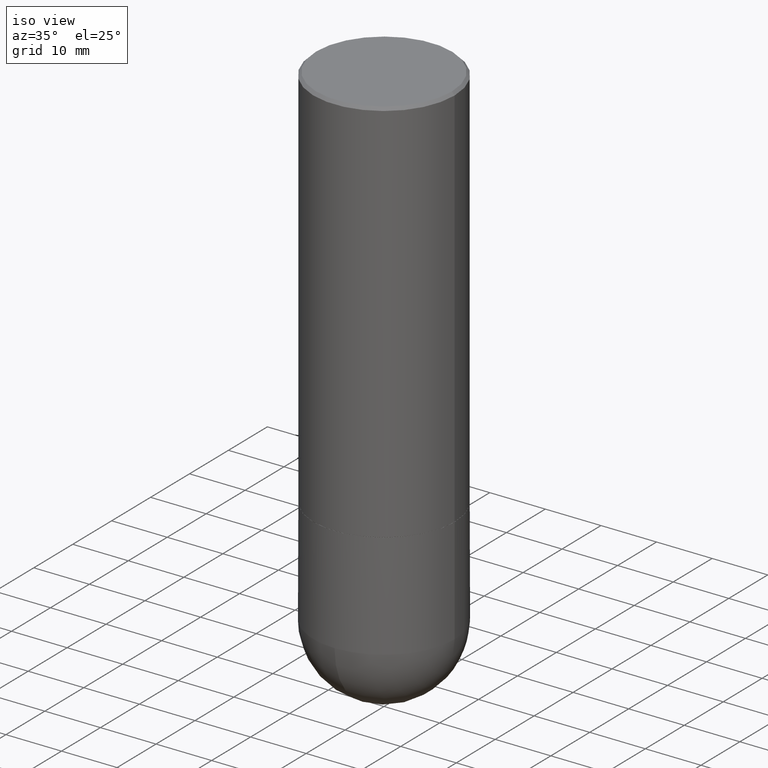
[diagram: clean part render]
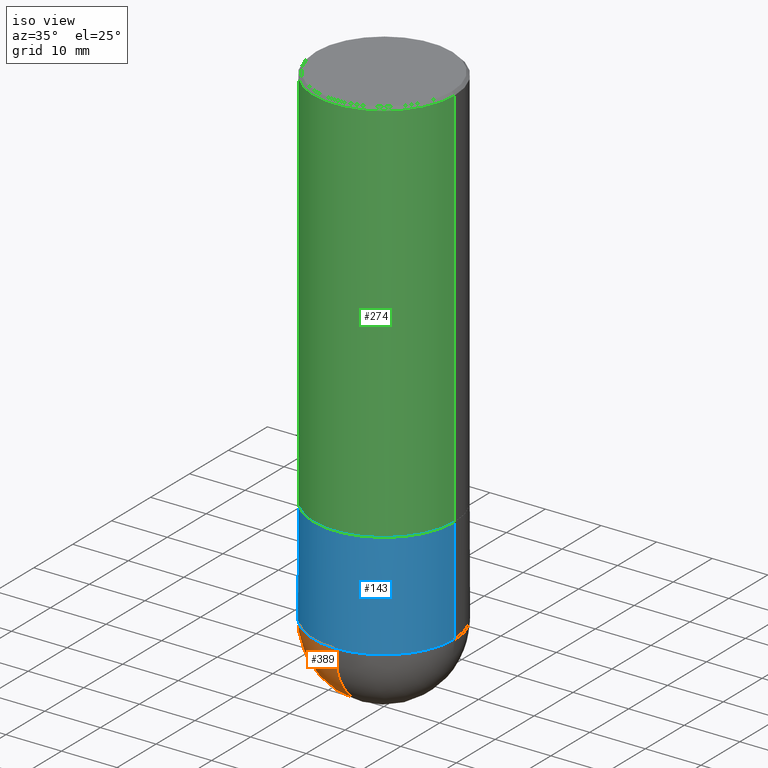
[diagram: same view with three faces highlighted in distinct colors, each labeled with its STEP entity id]
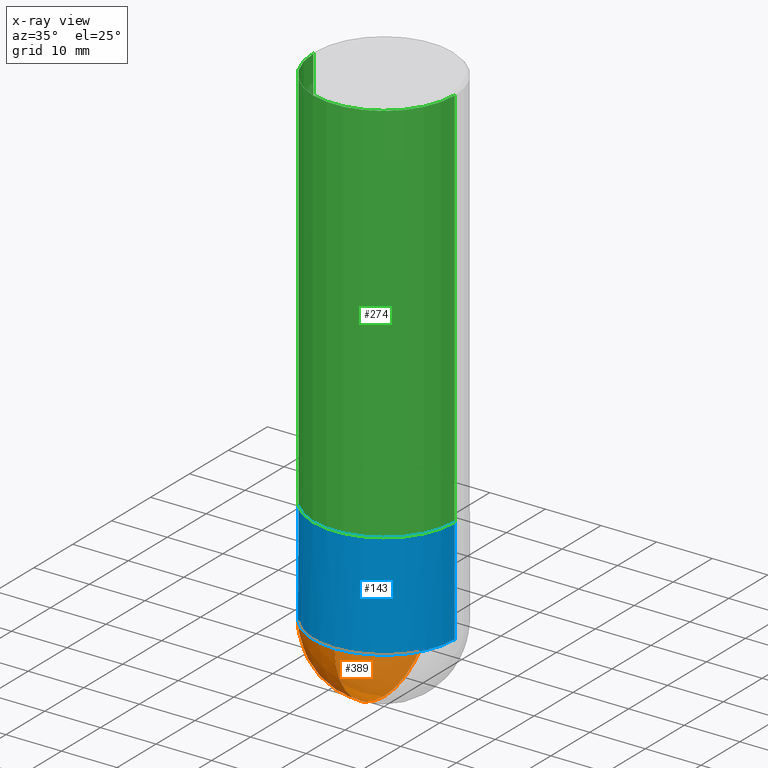
[diagram: x-ray of the same camera — body ghosted, the three highlighted faces saturated]
A machine part, iso view with three faces highlighted in distinct colors.
The next image is the same camera in x-ray (body ghosted, the three faces saturated) — at least one of them is partly hidden behind the body in this view.
Their STEP definitions:

[orange] entity #389 — the highlighted spherical surface has radius 12.7 mm.
#2 = VERTEX_POINT ( 'NONE', #133 ) ;
#6 = CARTESIAN_POINT ( 'NONE',  ( -3.552713678800417310E-15, -0.5000000000000125455, -3.499999999999998668 ) ) ;
#8 = CARTESIAN_POINT ( 'NONE',  ( 8.559140821647978089E-29, -1.222018468595101092E-14, -3.500000000000000444 ) ) ;
#12 = CARTESIAN_POINT ( 'NONE',  ( 8.228021043734090721E-29, -1.269436705409105806E-14, -3.500000000000000000 ) ) ;
#17 = CIRCLE ( 'NONE', #284, 0.5000000000000002220 ) ;
#19 = SPHERICAL_SURFACE ( 'NONE', #260, 0.5000000000000002220 ) ;
#26 = VERTEX_POINT ( 'NONE', #6 ) ;
#32 = VERTEX_POINT ( 'NONE', #91 ) ;
#37 = DIRECTION ( 'NONE',  ( 1.000000000000000000, -6.982962677686266711E-15, 0.000000000000000000 ) ) ;
#65 = EDGE_CURVE ( 'NONE', #2, #26, #177, .T. ) ;
#85 = CARTESIAN_POINT ( 'NONE',  ( 8.228021043734090721E-29, -1.269436705409105806E-14, -3.500000000000000000 ) ) ;
#91 = CARTESIAN_POINT ( 'NONE',  ( 9.472134604056145415E-29, -1.440949155353394884E-14, -4.000000000000000000 ) ) ;
#94 = ORIENTED_EDGE ( 'NONE', *, *, #217, .T. ) ;
#101 = DIRECTION ( 'NONE',  ( -7.105427357601001859E-15, -1.000000000000000000, 0.000000000000000000 ) ) ;
#103 = DIRECTION ( 'NONE',  ( 6.982962677686266711E-15, 1.000000000000000000, 0.000000000000000000 ) ) ;
#113 = VERTEX_POINT ( 'NONE', #265 ) ;
#133 = CARTESIAN_POINT ( 'NONE',  ( -0.5000000000000000000, -7.358165505084333404E-15, -3.500000000000000444 ) ) ;
#156 = EDGE_CURVE ( 'NONE', #113, #2, #370, .T. ) ;
#168 = CIRCLE ( 'NONE', #204, 0.5000000000000002220 ) ;
#175 = DIRECTION ( 'NONE',  ( -1.000000000000000000, 7.105427357601001070E-15, -4.926315508542082329E-29 ) ) ;
#177 = CIRCLE ( 'NONE', #213, 0.5000000000000000000 ) ;
#201 = EDGE_CURVE ( 'NONE', #32, #113, #17, .T. ) ;
#204 = AXIS2_PLACEMENT_3D ( 'NONE', #12, #175, #101 ) ;
#213 = AXIS2_PLACEMENT_3D ( 'NONE', #235, #318, #37 ) ;
#217 = EDGE_CURVE ( 'NONE', #32, #26, #168, .T. ) ;
#235 = CARTESIAN_POINT ( 'NONE',  ( 8.559140821647978089E-29, -1.222018468595101092E-14, -3.500000000000000444 ) ) ;
#250 = DIRECTION ( 'NONE',  ( -1.000000000000000000, 6.982962677686265922E-15, -4.883557194083113462E-29 ) ) ;
#260 = AXIS2_PLACEMENT_3D ( 'NONE', #85, #250, #313 ) ;
#265 = CARTESIAN_POINT ( 'NONE',  ( 3.491481338843217763E-15, 0.4999999999999876765, -3.500000000000002220 ) ) ;
#284 = AXIS2_PLACEMENT_3D ( 'NONE', #398, #296, #103 ) ;
#296 = DIRECTION ( 'NONE',  ( 1.000000000000000000, -6.982962677686265922E-15, 4.883557194083112340E-29 ) ) ;
#306 = EDGE_LOOP ( 'NONE', ( #358, #94, #344, #412 ) ) ;
#313 = DIRECTION ( 'NONE',  ( 6.982962677686265922E-15, 1.000000000000000000, -3.278217592397114284E-15 ) ) ;
#318 = DIRECTION ( 'NONE',  ( -2.445468806185136597E-29, 3.491481338843145583E-15, 1.000000000000000000 ) ) ;
#344 = ORIENTED_EDGE ( 'NONE', *, *, #65, .F. ) ;
#358 = ORIENTED_EDGE ( 'NONE', *, *, #201, .F. ) ;
#370 = CIRCLE ( 'NONE', #407, 0.5000000000000000000 ) ;
#374 = FACE_OUTER_BOUND ( 'NONE', #306, .T. ) ;
#389 = ADVANCED_FACE ( 'NONE', ( #374 ), #19, .T. ) ;
#393 = DIRECTION ( 'NONE',  ( -2.445468806185136597E-29, 3.491481338843145583E-15, 1.000000000000000000 ) ) ;
#398 = CARTESIAN_POINT ( 'NONE',  ( 8.228021043734090721E-29, -1.269436705409105806E-14, -3.500000000000000000 ) ) ;
#399 = DIRECTION ( 'NONE',  ( 1.000000000000000000, -6.982962677686266711E-15, 0.000000000000000000 ) ) ;
#407 = AXIS2_PLACEMENT_3D ( 'NONE', #8, #393, #399 ) ;
#412 = ORIENTED_EDGE ( 'NONE', *, *, #156, .F. ) ;

[blue] entity #143 — the highlighted cylindrical surface (partial cylindrical patch) has radius 12.7 mm, axis along (-0, 0, 1).
#2 = VERTEX_POINT ( 'NONE', #133 ) ;
#3 = EDGE_LOOP ( 'NONE', ( #289, #115, #224, #203, #50 ) ) ;
#6 = CARTESIAN_POINT ( 'NONE',  ( -3.552713678800417310E-15, -0.5000000000000125455, -3.499999999999998668 ) ) ;
#10 = CARTESIAN_POINT ( 'NONE',  ( 0.5000000000000000000, -1.440236052272796769E-14, -3.500000000000000444 ) ) ;
#26 = VERTEX_POINT ( 'NONE', #6 ) ;
#35 = DIRECTION ( 'NONE',  ( 1.000000000000000000, -6.982962677686266711E-15, 0.000000000000000000 ) ) ;
#37 = DIRECTION ( 'NONE',  ( 1.000000000000000000, -6.982962677686266711E-15, 0.000000000000000000 ) ) ;
#47 = EDGE_CURVE ( 'NONE', #341, #196, #400, .T. ) ;
#50 = ORIENTED_EDGE ( 'NONE', *, *, #47, .F. ) ;
#62 = FACE_OUTER_BOUND ( 'NONE', #3, .T. ) ;
#64 = CARTESIAN_POINT ( 'NONE',  ( 6.725039217009124520E-29, -9.601573681818649859E-15, -2.750000000000000000 ) ) ;
#65 = EDGE_CURVE ( 'NONE', #2, #26, #177, .T. ) ;
#79 = CARTESIAN_POINT ( 'NONE',  ( 8.559140821647978089E-29, -1.222018468595101092E-14, -3.500000000000000444 ) ) ;
#96 = CARTESIAN_POINT ( 'NONE',  ( 0.000000000000000000, 0.000000000000000000, 0.000000000000000000 ) ) ;
#106 = LINE ( 'NONE', #302, #386 ) ;
#115 = ORIENTED_EDGE ( 'NONE', *, *, #65, .T. ) ;
#133 = CARTESIAN_POINT ( 'NONE',  ( -0.5000000000000000000, -7.358165505084333404E-15, -3.500000000000000444 ) ) ;
#143 = ADVANCED_FACE ( 'NONE', ( #62 ), #322, .T. ) ;
#177 = CIRCLE ( 'NONE', #213, 0.5000000000000000000 ) ;
#184 = CARTESIAN_POINT ( 'NONE',  ( -0.5000000000000000000, -7.358165505084330249E-15, -2.750000000000000000 ) ) ;
#196 = VERTEX_POINT ( 'NONE', #271 ) ;
#203 = ORIENTED_EDGE ( 'NONE', *, *, #238, .T. ) ;
#212 = CARTESIAN_POINT ( 'NONE',  ( 0.5000000000000000000, -3.491481338843133355E-15, 2.438088387897967896E-29 ) ) ;
#213 = AXIS2_PLACEMENT_3D ( 'NONE', #235, #318, #37 ) ;
#224 = ORIENTED_EDGE ( 'NONE', *, *, #380, .T. ) ;
#226 = DIRECTION ( 'NONE',  ( 1.000000000000000000, -6.982962677686266711E-15, 4.876176775795935793E-29 ) ) ;
#235 = CARTESIAN_POINT ( 'NONE',  ( 8.559140821647978089E-29, -1.222018468595101092E-14, -3.500000000000000444 ) ) ;
#238 = EDGE_CURVE ( 'NONE', #248, #196, #266, .T. ) ;
#248 = VERTEX_POINT ( 'NONE', #10 ) ;
#252 = VECTOR ( 'NONE', #362, 39.37007874015748143 ) ;
#264 = EDGE_CURVE ( 'NONE', #2, #341, #106, .T. ) ;
#266 = LINE ( 'NONE', #212, #252 ) ;
#271 = CARTESIAN_POINT ( 'NONE',  ( 0.5000000000000000000, -1.309305502066178321E-14, -2.750000000000000000 ) ) ;
#273 = AXIS2_PLACEMENT_3D ( 'NONE', #79, #307, #311 ) ;
#289 = ORIENTED_EDGE ( 'NONE', *, *, #264, .F. ) ;
#292 = CIRCLE ( 'NONE', #273, 0.5000000000000000000 ) ;
#295 = DIRECTION ( 'NONE',  ( -2.445468806185136597E-29, 3.491481338843145583E-15, 1.000000000000000000 ) ) ;
#302 = CARTESIAN_POINT ( 'NONE',  ( -0.5000000000000000000, 3.552713678800500929E-15, -2.459467545127452891E-29 ) ) ;
#303 = AXIS2_PLACEMENT_3D ( 'NONE', #64, #388, #35 ) ;
#307 = DIRECTION ( 'NONE',  ( -2.445468806185136597E-29, 3.491481338843145583E-15, 1.000000000000000000 ) ) ;
#311 = DIRECTION ( 'NONE',  ( 1.000000000000000000, -6.982962677686266711E-15, 0.000000000000000000 ) ) ;
#318 = DIRECTION ( 'NONE',  ( -2.445468806185136597E-29, 3.491481338843145583E-15, 1.000000000000000000 ) ) ;
#322 = CYLINDRICAL_SURFACE ( 'NONE', #395, 0.5000000000000000000 ) ;
#341 = VERTEX_POINT ( 'NONE', #184 ) ;
#362 = DIRECTION ( 'NONE',  ( -2.445468806185136877E-29, 3.491481338843145188E-15, 1.000000000000000000 ) ) ;
#366 = DIRECTION ( 'NONE',  ( -2.445468806185136877E-29, 3.491481338843145188E-15, 1.000000000000000000 ) ) ;
#380 = EDGE_CURVE ( 'NONE', #26, #248, #292, .T. ) ;
#386 = VECTOR ( 'NONE', #366, 39.37007874015748143 ) ;
#388 = DIRECTION ( 'NONE',  ( -2.445468806185136597E-29, 3.491481338843145583E-15, 1.000000000000000000 ) ) ;
#395 = AXIS2_PLACEMENT_3D ( 'NONE', #96, #295, #226 ) ;
#400 = CIRCLE ( 'NONE', #303, 0.5000000000000000000 ) ;

[green] entity #274 — the highlighted cylindrical surface (partial cylindrical patch) has radius 12.7 mm, axis along (-0, 0, 1).
#14 = EDGE_CURVE ( 'NONE', #20, #206, #290, .T. ) ;
#16 = DIRECTION ( 'NONE',  ( -2.445468806185136597E-29, 3.491481338843145583E-15, 1.000000000000000000 ) ) ;
#20 = VERTEX_POINT ( 'NONE', #361 ) ;
#27 = DIRECTION ( 'NONE',  ( -2.445468806185136877E-29, 3.491481338843145188E-15, 1.000000000000000000 ) ) ;
#29 = ORIENTED_EDGE ( 'NONE', *, *, #80, .F. ) ;
#41 = LINE ( 'NONE', #207, #245 ) ;
#44 = FACE_OUTER_BOUND ( 'NONE', #86, .T. ) ;
#72 = EDGE_CURVE ( 'NONE', #206, #261, #97, .T. ) ;
#80 = EDGE_CURVE ( 'NONE', #254, #261, #315, .T. ) ;
#86 = EDGE_LOOP ( 'NONE', ( #406, #243, #286, #29 ) ) ;
#88 = CARTESIAN_POINT ( 'NONE',  ( 4.890937612370299433E-31, -6.982962677686328587E-17, -0.02000000000000010797 ) ) ;
#92 = AXIS2_PLACEMENT_3D ( 'NONE', #161, #287, #258 ) ;
#97 = LINE ( 'NONE', #256, #119 ) ;
#119 = VECTOR ( 'NONE', #27, 39.37007874015748143 ) ;
#121 = AXIS2_PLACEMENT_3D ( 'NONE', #368, #16, #137 ) ;
#134 = CARTESIAN_POINT ( 'NONE',  ( 0.5000000000000000000, -3.500078625662629079E-15, -0.02000000000000010797 ) ) ;
#135 = AXIS2_PLACEMENT_3D ( 'NONE', #88, #353, #166 ) ;
#137 = DIRECTION ( 'NONE',  ( 1.000000000000000000, -6.982962677686267499E-15, 4.876176775795935793E-29 ) ) ;
#161 = CARTESIAN_POINT ( 'NONE',  ( 6.722593748202941159E-29, -9.598082200479808430E-15, -2.749000000000000110 ) ) ;
#164 = EDGE_CURVE ( 'NONE', #20, #254, #41, .T. ) ;
#166 = DIRECTION ( 'NONE',  ( 1.000000000000000000, -6.982962677686266711E-15, 0.000000000000000000 ) ) ;
#179 = DIRECTION ( 'NONE',  ( -2.445468806185136877E-29, 3.491481338843145188E-15, 1.000000000000000000 ) ) ;
#182 = CYLINDRICAL_SURFACE ( 'NONE', #121, 0.5000000000000001110 ) ;
#206 = VERTEX_POINT ( 'NONE', #208 ) ;
#207 = CARTESIAN_POINT ( 'NONE',  ( -0.5000000000000001110, 3.552713678800501718E-15, -2.459467545127453732E-29 ) ) ;
#208 = CARTESIAN_POINT ( 'NONE',  ( 0.5000000000000002220, -1.308956353932294336E-14, -2.749000000000000110 ) ) ;
#210 = CARTESIAN_POINT ( 'NONE',  ( -0.5000000000000000000, 3.421651712066270057E-15, -0.02000000000000010797 ) ) ;
#243 = ORIENTED_EDGE ( 'NONE', *, *, #14, .T. ) ;
#245 = VECTOR ( 'NONE', #179, 39.37007874015748143 ) ;
#254 = VERTEX_POINT ( 'NONE', #210 ) ;
#256 = CARTESIAN_POINT ( 'NONE',  ( 0.5000000000000001110, -3.491481338843134539E-15, 2.438088387897968457E-29 ) ) ;
#258 = DIRECTION ( 'NONE',  ( 1.000000000000000000, -6.982962677686267499E-15, 0.000000000000000000 ) ) ;
#261 = VERTEX_POINT ( 'NONE', #134 ) ;
#274 = ADVANCED_FACE ( 'NONE', ( #44 ), #182, .T. ) ;
#286 = ORIENTED_EDGE ( 'NONE', *, *, #72, .T. ) ;
#287 = DIRECTION ( 'NONE',  ( -2.445468806185136597E-29, 3.491481338843145583E-15, 1.000000000000000000 ) ) ;
#290 = CIRCLE ( 'NONE', #92, 0.5000000000000002220 ) ;
#315 = CIRCLE ( 'NONE', #135, 0.5000000000000000000 ) ;
#353 = DIRECTION ( 'NONE',  ( -2.445468806185136597E-29, 3.491481338843145583E-15, 1.000000000000000000 ) ) ;
#361 = CARTESIAN_POINT ( 'NONE',  ( -0.5000000000000002220, -1.281242234827831779E-15, -2.749000000000000110 ) ) ;
#368 = CARTESIAN_POINT ( 'NONE',  ( 0.000000000000000000, 0.000000000000000000, 0.000000000000000000 ) ) ;
#406 = ORIENTED_EDGE ( 'NONE', *, *, #164, .F. ) ;